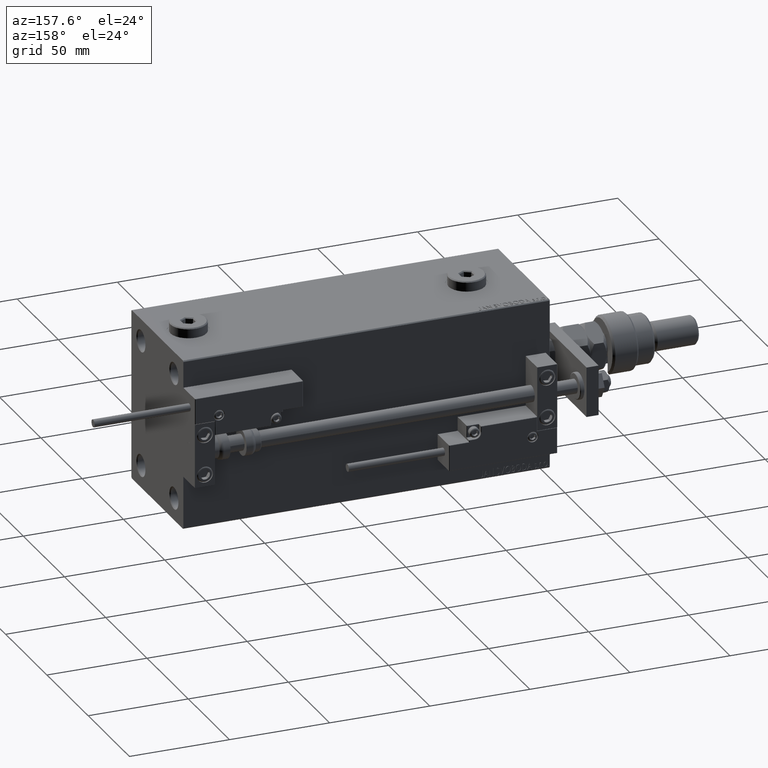
[diagram: clean part render]
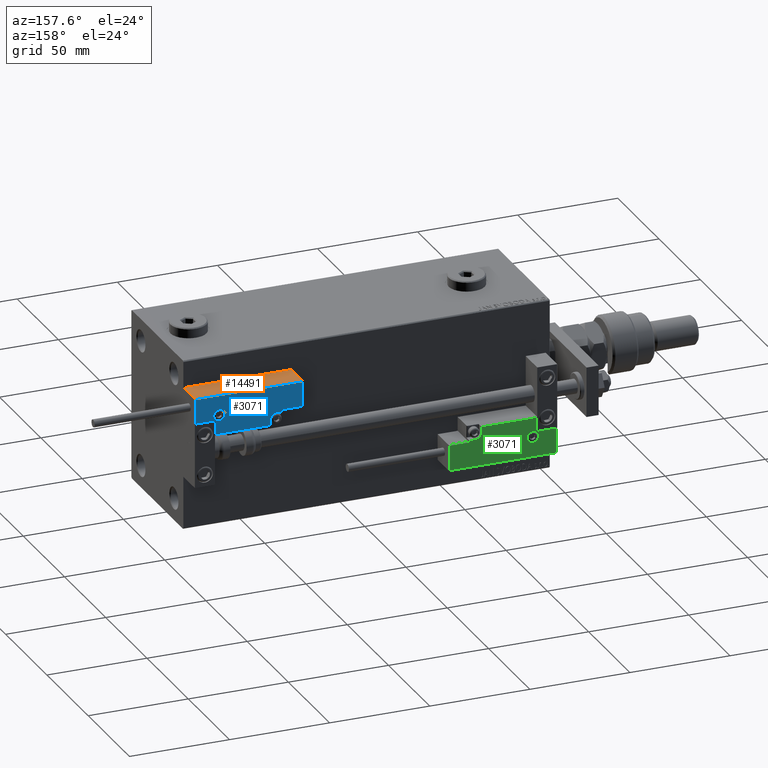
[diagram: same view with three faces highlighted in distinct colors, each labeled with its STEP entity id]
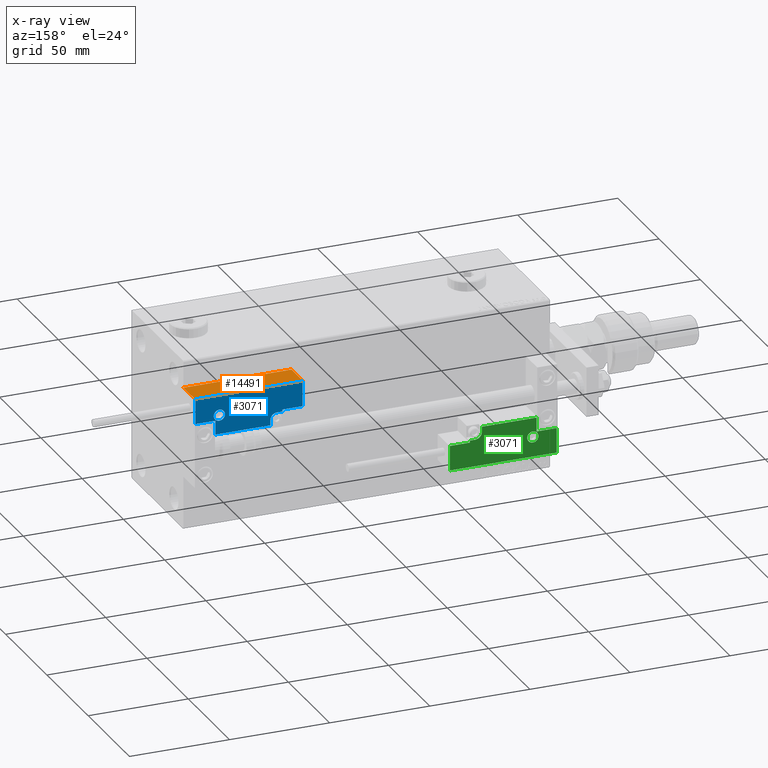
[diagram: x-ray of the same camera — body ghosted, the three highlighted faces saturated]
A machine part, auxiliary view with three faces highlighted in distinct colors.
The next image is the same camera in x-ray (body ghosted, the three faces saturated) — at least one of them is partly hidden behind the body in this view.
Their STEP definitions:

[orange] entity #14491 — the highlighted planar face has unit normal (0, -0, -1).
#128 = CARTESIAN_POINT ( 'NONE',  ( -26.99999999999993605, 20.00000000000002132, 13.70000000000000107 ) ) ;
#2923 = VECTOR ( 'NONE', #34518, 1000.000000000000000 ) ;
#4486 = VERTEX_POINT ( 'NONE', #39325 ) ;
#4894 = ORIENTED_EDGE ( 'NONE', *, *, #11595, .T. ) ;
#6226 = CARTESIAN_POINT ( 'NONE',  ( 27.00000000000006395, 20.00000000000001776, 0.000000000000000000 ) ) ;
#6303 = DIRECTION ( 'NONE',  ( 1.000000000000000000, -6.424901762877063495E-17, 0.000000000000000000 ) ) ;
#8046 = EDGE_CURVE ( 'NONE', #4486, #32660, #39459, .T. ) ;
#10016 = CARTESIAN_POINT ( 'NONE',  ( -26.99999999999993605, 20.00000000000002132, 0.000000000000000000 ) ) ;
#11054 = DIRECTION ( 'NONE',  ( 1.000000000000000000, -6.424901762877063495E-17, -0.000000000000000000 ) ) ;
#11595 = EDGE_CURVE ( 'NONE', #32660, #39853, #40487, .T. ) ;
#12390 = EDGE_LOOP ( 'NONE', ( #18543, #12899, #16334, #4894 ) ) ;
#12873 = CARTESIAN_POINT ( 'NONE',  ( 27.00000000000006395, 20.00000000000001776, 14.00000000000000000 ) ) ;
#12899 = ORIENTED_EDGE ( 'NONE', *, *, #15578, .T. ) ;
#14491 = ADVANCED_FACE ( 'NONE', ( #30928 ), #53077, .F. ) ;
#15578 = EDGE_CURVE ( 'NONE', #24275, #4486, #33427, .T. ) ;
#16334 = ORIENTED_EDGE ( 'NONE', *, *, #8046, .T. ) ;
#16630 = CARTESIAN_POINT ( 'NONE',  ( -26.99999999999993605, 20.00000000000002132, 14.00000000000000000 ) ) ;
#18543 = ORIENTED_EDGE ( 'NONE', *, *, #19114, .F. ) ;
#18630 = CARTESIAN_POINT ( 'NONE',  ( 27.00000000000006395, 20.00000000000001776, 14.00000000000000000 ) ) ;
#19114 = EDGE_CURVE ( 'NONE', #24275, #39853, #42944, .T. ) ;
#20304 = CARTESIAN_POINT ( 'NONE',  ( 27.00000000000006395, 20.00000000000001776, 13.70000000000000107 ) ) ;
#21625 = VECTOR ( 'NONE', #40763, 1000.000000000000000 ) ;
#24275 = VERTEX_POINT ( 'NONE', #128 ) ;
#30928 = FACE_OUTER_BOUND ( 'NONE', #12390, .T. ) ;
#31241 = CARTESIAN_POINT ( 'NONE',  ( 27.00000000000006395, 20.00000000000001776, 0.000000000000000000 ) ) ;
#31587 = AXIS2_PLACEMENT_3D ( 'NONE', #18630, #44103, #6303 ) ;
#32660 = VERTEX_POINT ( 'NONE', #6226 ) ;
#33427 = LINE ( 'NONE', #20304, #47766 ) ;
#34518 = DIRECTION ( 'NONE',  ( -0.000000000000000000, -0.000000000000000000, -1.000000000000000000 ) ) ;
#39325 = CARTESIAN_POINT ( 'NONE',  ( 27.00000000000006395, 20.00000000000001776, 13.70000000000000107 ) ) ;
#39459 = LINE ( 'NONE', #12873, #53717 ) ;
#39853 = VERTEX_POINT ( 'NONE', #10016 ) ;
#40487 = LINE ( 'NONE', #31241, #21625 ) ;
#40763 = DIRECTION ( 'NONE',  ( -1.000000000000000000, 6.424901762877062263E-17, 0.000000000000000000 ) ) ;
#42944 = LINE ( 'NONE', #16630, #2923 ) ;
#44103 = DIRECTION ( 'NONE',  ( -6.424901762877063495E-17, -1.000000000000000000, 0.000000000000000000 ) ) ;
#47766 = VECTOR ( 'NONE', #11054, 1000.000000000000000 ) ;
#52360 = DIRECTION ( 'NONE',  ( -0.000000000000000000, -0.000000000000000000, -1.000000000000000000 ) ) ;
#53077 = PLANE ( 'NONE',  #31587 ) ;
#53717 = VECTOR ( 'NONE', #52360, 1000.000000000000000 ) ;

[blue] entity #3071 — the highlighted planar face has unit normal (-0, 1, -0).
#864 = CARTESIAN_POINT ( 'NONE',  ( -26.99999999999993605, 19.70000000000002061, 14.00000000000000000 ) ) ;
#1192 = VERTEX_POINT ( 'NONE', #20855 ) ;
#1428 = DIRECTION ( 'NONE',  ( -1.000000000000000000, 6.424901762877063495E-17, -0.000000000000000000 ) ) ;
#2415 = EDGE_CURVE ( 'NONE', #6150, #49590, #39251, .T. ) ;
#2597 = EDGE_CURVE ( 'NONE', #8546, #2660, #23955, .T. ) ;
#2660 = VERTEX_POINT ( 'NONE', #3796 ) ;
#3071 = ADVANCED_FACE ( 'NONE', ( #6415, #28239 ), #44221, .T. ) ;
#3094 = VECTOR ( 'NONE', #27861, 1000.000000000000000 ) ;
#3759 = CARTESIAN_POINT ( 'NONE',  ( 10.69999999999999929, 3.000000000000003109, 14.00000000000000000 ) ) ;
#3796 = CARTESIAN_POINT ( 'NONE',  ( -26.69999999999994600, 7.300000000000005151, 14.00000000000000000 ) ) ;
#4240 = DIRECTION ( 'NONE',  ( 1.000000000000000000, 0.000000000000000000, 0.000000000000000000 ) ) ;
#6150 = VERTEX_POINT ( 'NONE', #40174 ) ;
#6415 = FACE_BOUND ( 'NONE', #16887, .T. ) ;
#6630 = CIRCLE ( 'NONE', #40597, 2.800000000000000266 ) ;
#7601 = ORIENTED_EDGE ( 'NONE', *, *, #39588, .T. ) ;
#7815 = VERTEX_POINT ( 'NONE', #15053 ) ;
#8333 = VERTEX_POINT ( 'NONE', #8433 ) ;
#8433 = CARTESIAN_POINT ( 'NONE',  ( 16.69999999999999929, 6.300000000000003375, 14.00000000000000000 ) ) ;
#8546 = VERTEX_POINT ( 'NONE', #27147 ) ;
#8705 = EDGE_CURVE ( 'NONE', #41686, #16601, #33282, .T. ) ;
#9763 = AXIS2_PLACEMENT_3D ( 'NONE', #52835, #36285, #30966 ) ;
#10215 = AXIS2_PLACEMENT_3D ( 'NONE', #12900, #30518, #4240 ) ;
#10688 = VECTOR ( 'NONE', #45814, 1000.000000000000000 ) ;
#10935 = VECTOR ( 'NONE', #35503, 1000.000000000000000 ) ;
#11654 = DIRECTION ( 'NONE',  ( 1.000000000000000000, 0.000000000000000000, 0.000000000000000000 ) ) ;
#11697 = DIRECTION ( 'NONE',  ( 0.000000000000000000, 1.000000000000000000, -0.000000000000000000 ) ) ;
#12386 = EDGE_LOOP ( 'NONE', ( #23701, #16203, #25957, #43799, #24253, #35496, #25994, #51997, #42706, #31066, #7601 ) ) ;
#12900 = CARTESIAN_POINT ( 'NONE',  ( 13.99999999999999822, 3.000000000000002665, 14.00000000000000000 ) ) ;
#13788 = CARTESIAN_POINT ( 'NONE',  ( -11.99999999999994849, 9.800000000000004263, 14.00000000000000000 ) ) ;
#13839 = EDGE_CURVE ( 'NONE', #43382, #8333, #42856, .T. ) ;
#14637 = VECTOR ( 'NONE', #38862, 1000.000000000000000 ) ;
#14815 = DIRECTION ( 'NONE',  ( -0.000000000000000000, 0.000000000000000000, 1.000000000000000000 ) ) ;
#14948 = EDGE_CURVE ( 'NONE', #44817, #49562, #43904, .T. ) ;
#14999 = CARTESIAN_POINT ( 'NONE',  ( 27.00000000000006395, 7.300000000000007816, 14.00000000000000000 ) ) ;
#15053 = CARTESIAN_POINT ( 'NONE',  ( 16.69999999999999929, 7.300000000000009592, 14.00000000000000000 ) ) ;
#15094 = CARTESIAN_POINT ( 'NONE',  ( 0.000000000000000000, 0.000000000000000000, 14.00000000000000000 ) ) ;
#15288 = VERTEX_POINT ( 'NONE', #30117 ) ;
#15586 = DIRECTION ( 'NONE',  ( 0.000000000000000000, -0.000000000000000000, -1.000000000000000000 ) ) ;
#15996 = ORIENTED_EDGE ( 'NONE', *, *, #22445, .T. ) ;
#16200 = EDGE_CURVE ( 'NONE', #7815, #1192, #49166, .T. ) ;
#16203 = ORIENTED_EDGE ( 'NONE', *, *, #44518, .T. ) ;
#16601 = VERTEX_POINT ( 'NONE', #22038 ) ;
#16887 = EDGE_LOOP ( 'NONE', ( #15996, #44852 ) ) ;
#16969 = DIRECTION ( 'NONE',  ( 1.000000000000000000, -1.734723475976815230E-16, 0.000000000000000000 ) ) ;
#17658 = DIRECTION ( 'NONE',  ( 1.000000000000000000, 5.782411586589357639E-16, -0.000000000000000000 ) ) ;
#18442 = CARTESIAN_POINT ( 'NONE',  ( 11.00000000000000000, 0.3000000000000032085, 14.00000000000000000 ) ) ;
#19264 = CARTESIAN_POINT ( 'NONE',  ( 13.99999999999999822, 6.300000000000001599, 14.00000000000000000 ) ) ;
#20855 = CARTESIAN_POINT ( 'NONE',  ( 26.70000000000006324, 7.300000000000007816, 14.00000000000000000 ) ) ;
#22038 = CARTESIAN_POINT ( 'NONE',  ( -16.69999999999999218, 0.3000000000000032085, 14.00000000000000000 ) ) ;
#22445 = EDGE_CURVE ( 'NONE', #49590, #6150, #6630, .T. ) ;
#22656 = VECTOR ( 'NONE', #17658, 1000.000000000000000 ) ;
#23630 = CIRCLE ( 'NONE', #10215, 3.299999999999997158 ) ;
#23701 = ORIENTED_EDGE ( 'NONE', *, *, #8705, .T. ) ;
#23955 = LINE ( 'NONE', #41049, #10688 ) ;
#24253 = ORIENTED_EDGE ( 'NONE', *, *, #13839, .T. ) ;
#24590 = VECTOR ( 'NONE', #11697, 1000.000000000000000 ) ;
#25957 = ORIENTED_EDGE ( 'NONE', *, *, #14948, .T. ) ;
#25994 = ORIENTED_EDGE ( 'NONE', *, *, #16200, .T. ) ;
#26033 = CARTESIAN_POINT ( 'NONE',  ( 17.00000000000000000, 6.300000000000003375, 14.00000000000000000 ) ) ;
#27147 = CARTESIAN_POINT ( 'NONE',  ( -26.69999999999993534, 19.70000000000002061, 14.00000000000000000 ) ) ;
#27861 = DIRECTION ( 'NONE',  ( 1.000000000000000000, -1.734723475976796001E-16, 0.000000000000000000 ) ) ;
#28050 = EDGE_CURVE ( 'NONE', #8333, #7815, #33880, .T. ) ;
#28239 = FACE_OUTER_BOUND ( 'NONE', #12386, .T. ) ;
#28514 = EDGE_CURVE ( 'NONE', #15288, #8546, #35008, .T. ) ;
#29290 = CARTESIAN_POINT ( 'NONE',  ( -16.99999999999999289, 7.300000000000003375, 14.00000000000000000 ) ) ;
#29405 = DIRECTION ( 'NONE',  ( 9.912705577010318647E-16, 1.000000000000000000, 0.000000000000000000 ) ) ;
#29542 = VECTOR ( 'NONE', #42256, 1000.000000000000000 ) ;
#29790 = CARTESIAN_POINT ( 'NONE',  ( 10.69999999999999929, 0.3000000000000032085, 14.00000000000000000 ) ) ;
#30117 = CARTESIAN_POINT ( 'NONE',  ( 26.70000000000006324, 19.70000000000001705, 14.00000000000000000 ) ) ;
#30518 = DIRECTION ( 'NONE',  ( 0.000000000000000000, -0.000000000000000000, -1.000000000000000000 ) ) ;
#30966 = DIRECTION ( 'NONE',  ( 1.000000000000000000, 0.000000000000000000, 0.000000000000000000 ) ) ;
#31066 = ORIENTED_EDGE ( 'NONE', *, *, #2597, .T. ) ;
#32161 = DIRECTION ( 'NONE',  ( 1.000000000000000000, 0.000000000000000000, 0.000000000000000000 ) ) ;
#32372 = CARTESIAN_POINT ( 'NONE',  ( -14.79999999999994920, 9.800000000000004263, 14.00000000000000000 ) ) ;
#33282 = LINE ( 'NONE', #37765, #29542 ) ;
#33880 = LINE ( 'NONE', #37270, #36315 ) ;
#34410 = VECTOR ( 'NONE', #1428, 1000.000000000000000 ) ;
#34801 = AXIS2_PLACEMENT_3D ( 'NONE', #15094, #14815, #32161 ) ;
#35008 = LINE ( 'NONE', #864, #34410 ) ;
#35496 = ORIENTED_EDGE ( 'NONE', *, *, #28050, .T. ) ;
#35503 = DIRECTION ( 'NONE',  ( 1.000000000000000000, -0.000000000000000000, 0.000000000000000000 ) ) ;
#36285 = DIRECTION ( 'NONE',  ( 0.000000000000000000, -0.000000000000000000, -1.000000000000000000 ) ) ;
#36315 = VECTOR ( 'NONE', #29405, 1000.000000000000000 ) ;
#37270 = CARTESIAN_POINT ( 'NONE',  ( 16.69999999999999929, 7.000000000000009770, 14.00000000000000000 ) ) ;
#37765 = CARTESIAN_POINT ( 'NONE',  ( -16.69999999999999218, 3.252606517456513302E-15, 14.00000000000000000 ) ) ;
#37919 = CARTESIAN_POINT ( 'NONE',  ( -16.69999999999999218, 7.300000000000003375, 14.00000000000000000 ) ) ;
#38862 = DIRECTION ( 'NONE',  ( -0.000000000000000000, 1.000000000000000000, -0.000000000000000000 ) ) ;
#39251 = CIRCLE ( 'NONE', #9763, 2.800000000000000266 ) ;
#39588 = EDGE_CURVE ( 'NONE', #2660, #41686, #46651, .T. ) ;
#40174 = CARTESIAN_POINT ( 'NONE',  ( -17.59999999999994813, 9.800000000000004263, 14.00000000000000000 ) ) ;
#40597 = AXIS2_PLACEMENT_3D ( 'NONE', #32372, #15586, #11654 ) ;
#41049 = CARTESIAN_POINT ( 'NONE',  ( -26.69999999999994600, 7.000000000000005329, 14.00000000000000000 ) ) ;
#41686 = VERTEX_POINT ( 'NONE', #37919 ) ;
#42256 = DIRECTION ( 'NONE',  ( 0.000000000000000000, -1.000000000000000000, 0.000000000000000000 ) ) ;
#42706 = ORIENTED_EDGE ( 'NONE', *, *, #28514, .T. ) ;
#42856 = LINE ( 'NONE', #26033, #22656 ) ;
#42940 = VECTOR ( 'NONE', #16969, 1000.000000000000000 ) ;
#43083 = LINE ( 'NONE', #18442, #10935 ) ;
#43382 = VERTEX_POINT ( 'NONE', #19264 ) ;
#43799 = ORIENTED_EDGE ( 'NONE', *, *, #52666, .T. ) ;
#43904 = LINE ( 'NONE', #48105, #14637 ) ;
#43980 = CARTESIAN_POINT ( 'NONE',  ( 26.70000000000006324, 20.00000000000001776, 14.00000000000000000 ) ) ;
#44221 = PLANE ( 'NONE',  #34801 ) ;
#44518 = EDGE_CURVE ( 'NONE', #16601, #44817, #43083, .T. ) ;
#44817 = VERTEX_POINT ( 'NONE', #29790 ) ;
#44852 = ORIENTED_EDGE ( 'NONE', *, *, #2415, .T. ) ;
#45814 = DIRECTION ( 'NONE',  ( -8.006416042969869188E-16, -1.000000000000000000, 0.000000000000000000 ) ) ;
#46651 = LINE ( 'NONE', #29290, #42940 ) ;
#48105 = CARTESIAN_POINT ( 'NONE',  ( 10.69999999999999929, 3.000000000000003109, 14.00000000000000000 ) ) ;
#48181 = LINE ( 'NONE', #43980, #24590 ) ;
#49166 = LINE ( 'NONE', #14999, #3094 ) ;
#49562 = VERTEX_POINT ( 'NONE', #3759 ) ;
#49590 = VERTEX_POINT ( 'NONE', #13788 ) ;
#51997 = ORIENTED_EDGE ( 'NONE', *, *, #53938, .T. ) ;
#52666 = EDGE_CURVE ( 'NONE', #49562, #43382, #23630, .T. ) ;
#52835 = CARTESIAN_POINT ( 'NONE',  ( -14.79999999999994920, 9.800000000000004263, 14.00000000000000000 ) ) ;
#53938 = EDGE_CURVE ( 'NONE', #1192, #15288, #48181, .T. ) ;

[green] entity #3071 — the highlighted planar face has unit normal (-0, 1, -0).
#864 = CARTESIAN_POINT ( 'NONE',  ( -26.99999999999993605, 19.70000000000002061, 14.00000000000000000 ) ) ;
#1192 = VERTEX_POINT ( 'NONE', #20855 ) ;
#1428 = DIRECTION ( 'NONE',  ( -1.000000000000000000, 6.424901762877063495E-17, -0.000000000000000000 ) ) ;
#2415 = EDGE_CURVE ( 'NONE', #6150, #49590, #39251, .T. ) ;
#2597 = EDGE_CURVE ( 'NONE', #8546, #2660, #23955, .T. ) ;
#2660 = VERTEX_POINT ( 'NONE', #3796 ) ;
#3071 = ADVANCED_FACE ( 'NONE', ( #6415, #28239 ), #44221, .T. ) ;
#3094 = VECTOR ( 'NONE', #27861, 1000.000000000000000 ) ;
#3759 = CARTESIAN_POINT ( 'NONE',  ( 10.69999999999999929, 3.000000000000003109, 14.00000000000000000 ) ) ;
#3796 = CARTESIAN_POINT ( 'NONE',  ( -26.69999999999994600, 7.300000000000005151, 14.00000000000000000 ) ) ;
#4240 = DIRECTION ( 'NONE',  ( 1.000000000000000000, 0.000000000000000000, 0.000000000000000000 ) ) ;
#6150 = VERTEX_POINT ( 'NONE', #40174 ) ;
#6415 = FACE_BOUND ( 'NONE', #16887, .T. ) ;
#6630 = CIRCLE ( 'NONE', #40597, 2.800000000000000266 ) ;
#7601 = ORIENTED_EDGE ( 'NONE', *, *, #39588, .T. ) ;
#7815 = VERTEX_POINT ( 'NONE', #15053 ) ;
#8333 = VERTEX_POINT ( 'NONE', #8433 ) ;
#8433 = CARTESIAN_POINT ( 'NONE',  ( 16.69999999999999929, 6.300000000000003375, 14.00000000000000000 ) ) ;
#8546 = VERTEX_POINT ( 'NONE', #27147 ) ;
#8705 = EDGE_CURVE ( 'NONE', #41686, #16601, #33282, .T. ) ;
#9763 = AXIS2_PLACEMENT_3D ( 'NONE', #52835, #36285, #30966 ) ;
#10215 = AXIS2_PLACEMENT_3D ( 'NONE', #12900, #30518, #4240 ) ;
#10688 = VECTOR ( 'NONE', #45814, 1000.000000000000000 ) ;
#10935 = VECTOR ( 'NONE', #35503, 1000.000000000000000 ) ;
#11654 = DIRECTION ( 'NONE',  ( 1.000000000000000000, 0.000000000000000000, 0.000000000000000000 ) ) ;
#11697 = DIRECTION ( 'NONE',  ( 0.000000000000000000, 1.000000000000000000, -0.000000000000000000 ) ) ;
#12386 = EDGE_LOOP ( 'NONE', ( #23701, #16203, #25957, #43799, #24253, #35496, #25994, #51997, #42706, #31066, #7601 ) ) ;
#12900 = CARTESIAN_POINT ( 'NONE',  ( 13.99999999999999822, 3.000000000000002665, 14.00000000000000000 ) ) ;
#13788 = CARTESIAN_POINT ( 'NONE',  ( -11.99999999999994849, 9.800000000000004263, 14.00000000000000000 ) ) ;
#13839 = EDGE_CURVE ( 'NONE', #43382, #8333, #42856, .T. ) ;
#14637 = VECTOR ( 'NONE', #38862, 1000.000000000000000 ) ;
#14815 = DIRECTION ( 'NONE',  ( -0.000000000000000000, 0.000000000000000000, 1.000000000000000000 ) ) ;
#14948 = EDGE_CURVE ( 'NONE', #44817, #49562, #43904, .T. ) ;
#14999 = CARTESIAN_POINT ( 'NONE',  ( 27.00000000000006395, 7.300000000000007816, 14.00000000000000000 ) ) ;
#15053 = CARTESIAN_POINT ( 'NONE',  ( 16.69999999999999929, 7.300000000000009592, 14.00000000000000000 ) ) ;
#15094 = CARTESIAN_POINT ( 'NONE',  ( 0.000000000000000000, 0.000000000000000000, 14.00000000000000000 ) ) ;
#15288 = VERTEX_POINT ( 'NONE', #30117 ) ;
#15586 = DIRECTION ( 'NONE',  ( 0.000000000000000000, -0.000000000000000000, -1.000000000000000000 ) ) ;
#15996 = ORIENTED_EDGE ( 'NONE', *, *, #22445, .T. ) ;
#16200 = EDGE_CURVE ( 'NONE', #7815, #1192, #49166, .T. ) ;
#16203 = ORIENTED_EDGE ( 'NONE', *, *, #44518, .T. ) ;
#16601 = VERTEX_POINT ( 'NONE', #22038 ) ;
#16887 = EDGE_LOOP ( 'NONE', ( #15996, #44852 ) ) ;
#16969 = DIRECTION ( 'NONE',  ( 1.000000000000000000, -1.734723475976815230E-16, 0.000000000000000000 ) ) ;
#17658 = DIRECTION ( 'NONE',  ( 1.000000000000000000, 5.782411586589357639E-16, -0.000000000000000000 ) ) ;
#18442 = CARTESIAN_POINT ( 'NONE',  ( 11.00000000000000000, 0.3000000000000032085, 14.00000000000000000 ) ) ;
#19264 = CARTESIAN_POINT ( 'NONE',  ( 13.99999999999999822, 6.300000000000001599, 14.00000000000000000 ) ) ;
#20855 = CARTESIAN_POINT ( 'NONE',  ( 26.70000000000006324, 7.300000000000007816, 14.00000000000000000 ) ) ;
#22038 = CARTESIAN_POINT ( 'NONE',  ( -16.69999999999999218, 0.3000000000000032085, 14.00000000000000000 ) ) ;
#22445 = EDGE_CURVE ( 'NONE', #49590, #6150, #6630, .T. ) ;
#22656 = VECTOR ( 'NONE', #17658, 1000.000000000000000 ) ;
#23630 = CIRCLE ( 'NONE', #10215, 3.299999999999997158 ) ;
#23701 = ORIENTED_EDGE ( 'NONE', *, *, #8705, .T. ) ;
#23955 = LINE ( 'NONE', #41049, #10688 ) ;
#24253 = ORIENTED_EDGE ( 'NONE', *, *, #13839, .T. ) ;
#24590 = VECTOR ( 'NONE', #11697, 1000.000000000000000 ) ;
#25957 = ORIENTED_EDGE ( 'NONE', *, *, #14948, .T. ) ;
#25994 = ORIENTED_EDGE ( 'NONE', *, *, #16200, .T. ) ;
#26033 = CARTESIAN_POINT ( 'NONE',  ( 17.00000000000000000, 6.300000000000003375, 14.00000000000000000 ) ) ;
#27147 = CARTESIAN_POINT ( 'NONE',  ( -26.69999999999993534, 19.70000000000002061, 14.00000000000000000 ) ) ;
#27861 = DIRECTION ( 'NONE',  ( 1.000000000000000000, -1.734723475976796001E-16, 0.000000000000000000 ) ) ;
#28050 = EDGE_CURVE ( 'NONE', #8333, #7815, #33880, .T. ) ;
#28239 = FACE_OUTER_BOUND ( 'NONE', #12386, .T. ) ;
#28514 = EDGE_CURVE ( 'NONE', #15288, #8546, #35008, .T. ) ;
#29290 = CARTESIAN_POINT ( 'NONE',  ( -16.99999999999999289, 7.300000000000003375, 14.00000000000000000 ) ) ;
#29405 = DIRECTION ( 'NONE',  ( 9.912705577010318647E-16, 1.000000000000000000, 0.000000000000000000 ) ) ;
#29542 = VECTOR ( 'NONE', #42256, 1000.000000000000000 ) ;
#29790 = CARTESIAN_POINT ( 'NONE',  ( 10.69999999999999929, 0.3000000000000032085, 14.00000000000000000 ) ) ;
#30117 = CARTESIAN_POINT ( 'NONE',  ( 26.70000000000006324, 19.70000000000001705, 14.00000000000000000 ) ) ;
#30518 = DIRECTION ( 'NONE',  ( 0.000000000000000000, -0.000000000000000000, -1.000000000000000000 ) ) ;
#30966 = DIRECTION ( 'NONE',  ( 1.000000000000000000, 0.000000000000000000, 0.000000000000000000 ) ) ;
#31066 = ORIENTED_EDGE ( 'NONE', *, *, #2597, .T. ) ;
#32161 = DIRECTION ( 'NONE',  ( 1.000000000000000000, 0.000000000000000000, 0.000000000000000000 ) ) ;
#32372 = CARTESIAN_POINT ( 'NONE',  ( -14.79999999999994920, 9.800000000000004263, 14.00000000000000000 ) ) ;
#33282 = LINE ( 'NONE', #37765, #29542 ) ;
#33880 = LINE ( 'NONE', #37270, #36315 ) ;
#34410 = VECTOR ( 'NONE', #1428, 1000.000000000000000 ) ;
#34801 = AXIS2_PLACEMENT_3D ( 'NONE', #15094, #14815, #32161 ) ;
#35008 = LINE ( 'NONE', #864, #34410 ) ;
#35496 = ORIENTED_EDGE ( 'NONE', *, *, #28050, .T. ) ;
#35503 = DIRECTION ( 'NONE',  ( 1.000000000000000000, -0.000000000000000000, 0.000000000000000000 ) ) ;
#36285 = DIRECTION ( 'NONE',  ( 0.000000000000000000, -0.000000000000000000, -1.000000000000000000 ) ) ;
#36315 = VECTOR ( 'NONE', #29405, 1000.000000000000000 ) ;
#37270 = CARTESIAN_POINT ( 'NONE',  ( 16.69999999999999929, 7.000000000000009770, 14.00000000000000000 ) ) ;
#37765 = CARTESIAN_POINT ( 'NONE',  ( -16.69999999999999218, 3.252606517456513302E-15, 14.00000000000000000 ) ) ;
#37919 = CARTESIAN_POINT ( 'NONE',  ( -16.69999999999999218, 7.300000000000003375, 14.00000000000000000 ) ) ;
#38862 = DIRECTION ( 'NONE',  ( -0.000000000000000000, 1.000000000000000000, -0.000000000000000000 ) ) ;
#39251 = CIRCLE ( 'NONE', #9763, 2.800000000000000266 ) ;
#39588 = EDGE_CURVE ( 'NONE', #2660, #41686, #46651, .T. ) ;
#40174 = CARTESIAN_POINT ( 'NONE',  ( -17.59999999999994813, 9.800000000000004263, 14.00000000000000000 ) ) ;
#40597 = AXIS2_PLACEMENT_3D ( 'NONE', #32372, #15586, #11654 ) ;
#41049 = CARTESIAN_POINT ( 'NONE',  ( -26.69999999999994600, 7.000000000000005329, 14.00000000000000000 ) ) ;
#41686 = VERTEX_POINT ( 'NONE', #37919 ) ;
#42256 = DIRECTION ( 'NONE',  ( 0.000000000000000000, -1.000000000000000000, 0.000000000000000000 ) ) ;
#42706 = ORIENTED_EDGE ( 'NONE', *, *, #28514, .T. ) ;
#42856 = LINE ( 'NONE', #26033, #22656 ) ;
#42940 = VECTOR ( 'NONE', #16969, 1000.000000000000000 ) ;
#43083 = LINE ( 'NONE', #18442, #10935 ) ;
#43382 = VERTEX_POINT ( 'NONE', #19264 ) ;
#43799 = ORIENTED_EDGE ( 'NONE', *, *, #52666, .T. ) ;
#43904 = LINE ( 'NONE', #48105, #14637 ) ;
#43980 = CARTESIAN_POINT ( 'NONE',  ( 26.70000000000006324, 20.00000000000001776, 14.00000000000000000 ) ) ;
#44221 = PLANE ( 'NONE',  #34801 ) ;
#44518 = EDGE_CURVE ( 'NONE', #16601, #44817, #43083, .T. ) ;
#44817 = VERTEX_POINT ( 'NONE', #29790 ) ;
#44852 = ORIENTED_EDGE ( 'NONE', *, *, #2415, .T. ) ;
#45814 = DIRECTION ( 'NONE',  ( -8.006416042969869188E-16, -1.000000000000000000, 0.000000000000000000 ) ) ;
#46651 = LINE ( 'NONE', #29290, #42940 ) ;
#48105 = CARTESIAN_POINT ( 'NONE',  ( 10.69999999999999929, 3.000000000000003109, 14.00000000000000000 ) ) ;
#48181 = LINE ( 'NONE', #43980, #24590 ) ;
#49166 = LINE ( 'NONE', #14999, #3094 ) ;
#49562 = VERTEX_POINT ( 'NONE', #3759 ) ;
#49590 = VERTEX_POINT ( 'NONE', #13788 ) ;
#51997 = ORIENTED_EDGE ( 'NONE', *, *, #53938, .T. ) ;
#52666 = EDGE_CURVE ( 'NONE', #49562, #43382, #23630, .T. ) ;
#52835 = CARTESIAN_POINT ( 'NONE',  ( -14.79999999999994920, 9.800000000000004263, 14.00000000000000000 ) ) ;
#53938 = EDGE_CURVE ( 'NONE', #1192, #15288, #48181, .T. ) ;